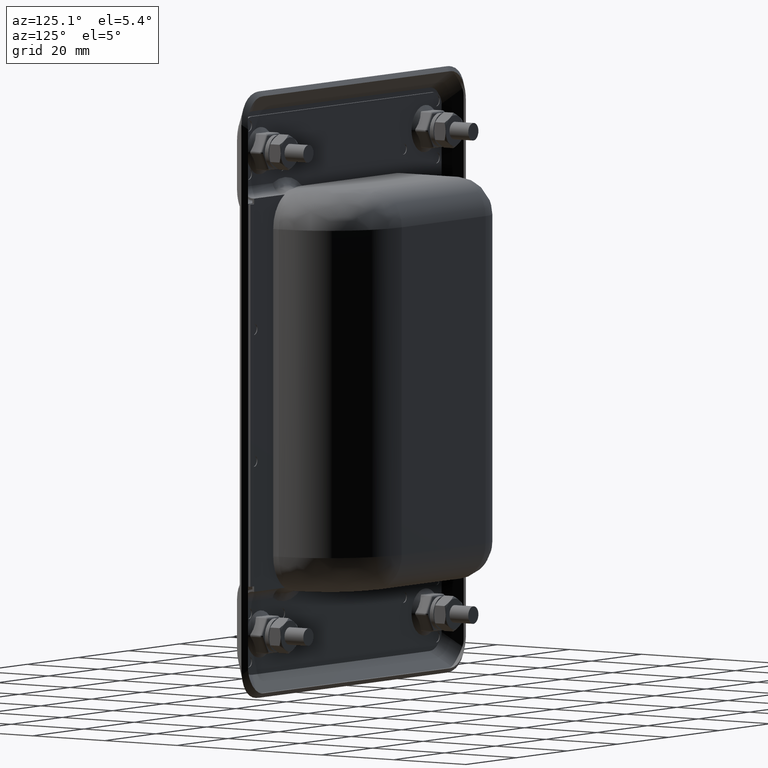
[diagram: clean part render]
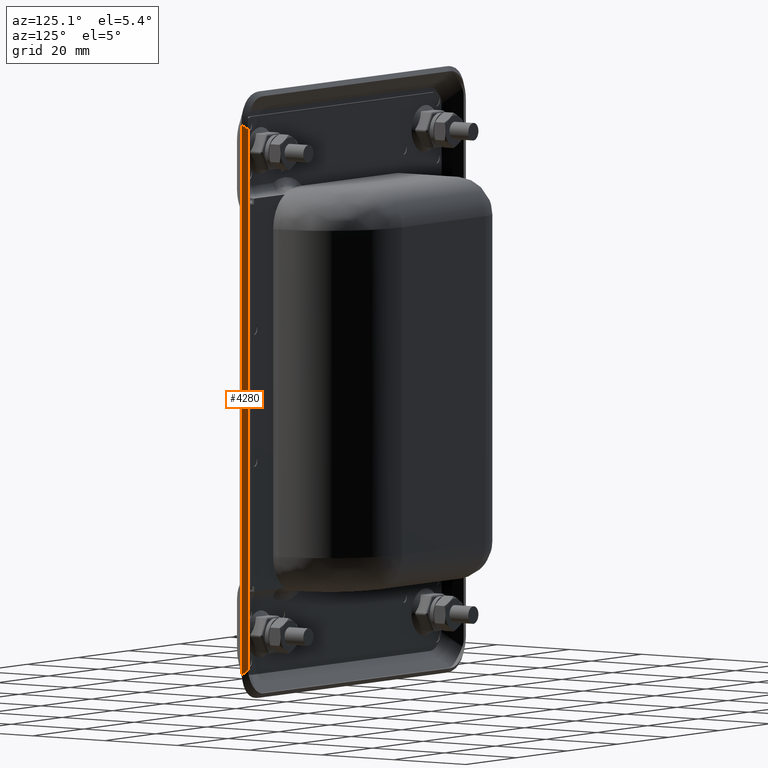
[diagram: same view with one face highlighted and labeled with its STEP entity id]
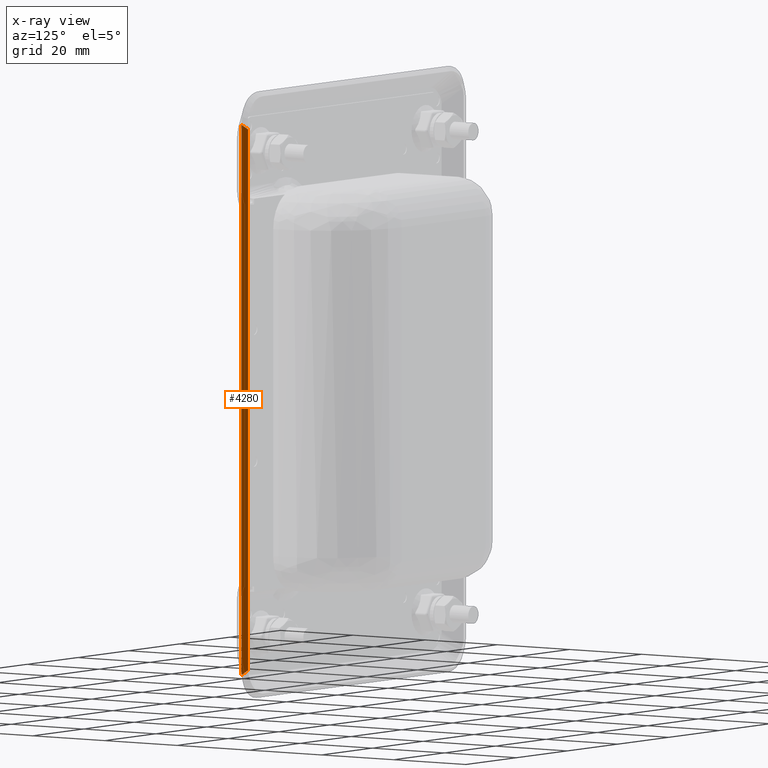
[diagram: x-ray of the same camera — body ghosted, the highlighted face saturated]
A machine part, auxiliary view. The second image highlights one B-rep face of the part: STEP entity #4280.
The next image is the same camera in x-ray: the body ghosted, the highlighted face saturated — about 0% of this face is hidden behind the body in this view.
In plain terms, the highlighted face is a freeform B-spline surface patch.
Its self-contained STEP definition (entity closure, byte-faithful):
#3220=CARTESIAN_POINT('',(42.930704785089347,5.509295215085380,-62.273850535610393));
#3221=VERTEX_POINT('',#3220);
#3261=CARTESIAN_POINT('',(43.955631830843352,4.484368169331470,-63.298777581364412));
#3262=VERTEX_POINT('',#3261);
#3263=CARTESIAN_POINT('',(43.955631830843352,4.484368169331470,-63.298777581364412));
#3264=CARTESIAN_POINT('',(42.930704785089347,5.509295215085380,-62.273850535610393));
#3265=QUASI_UNIFORM_CURVE('',1,(#3263,#3264),.UNSPECIFIED.,.F.,.U.);
#3266=EDGE_CURVE('',#3262,#3221,#3265,.T.);
#3461=CARTESIAN_POINT('',(44.000000000174794,4.440000000000000,-61.928932188322797));
#3462=VERTEX_POINT('',#3461);
#3484=CARTESIAN_POINT('',(44.000000000174794,4.440000000000000,-61.928932188322797));
#3485=CARTESIAN_POINT('',(44.000021687554877,4.439978312619915,-62.386184432750632));
#3486=CARTESIAN_POINT('',(43.985211435540172,4.454788564634796,-62.843444208321039));
#3487=CARTESIAN_POINT('',(43.955631830843352,4.484368169331470,-63.298777581364412));
#3488=B_SPLINE_CURVE_WITH_KNOTS('',3,(#3484,#3485,#3486,#3487),.UNSPECIFIED.,.F.,.U.,(4,4),(3.693499E-010,1.371769386644681),.UNSPECIFIED.);
#3489=EDGE_CURVE('',#3462,#3262,#3488,.T.);
#3853=CARTESIAN_POINT('',(42.940000000174798,5.500000000000000,-61.940000000188199));
#3854=VERTEX_POINT('',#3853);
#3855=CARTESIAN_POINT('',(42.930704785089347,5.509295215085380,-62.273850535610393));
#3856=CARTESIAN_POINT('',(42.940000000174798,5.500000000000000,-61.940000000188199));
#3857=QUASI_UNIFORM_CURVE('',1,(#3855,#3856),.UNSPECIFIED.,.F.,.U.);
#3858=EDGE_CURVE('',#3221,#3854,#3857,.T.);
#3981=CARTESIAN_POINT('',(44.000000000174794,4.440000000000000,61.928932187923600));
#3982=VERTEX_POINT('',#3981);
#4035=CARTESIAN_POINT('',(42.940000000174798,5.500000000000000,60.868932187923903));
#4036=VERTEX_POINT('',#4035);
#4037=CARTESIAN_POINT('',(42.940000000174798,5.500000000000000,60.868932187923903));
#4038=CARTESIAN_POINT('',(44.000000000174794,4.440000000000000,61.928932187923600));
#4039=QUASI_UNIFORM_CURVE('',1,(#4037,#4038),.UNSPECIFIED.,.F.,.U.);
#4040=EDGE_CURVE('',#4036,#3982,#4039,.T.);
#4259=CARTESIAN_POINT('',(44.053411225779733,4.386588774395057,-69.553902617172881));
#4260=CARTESIAN_POINT('',(42.877294266942513,5.562705733232282,-69.553902617172881));
#4261=CARTESIAN_POINT('',(44.053411225779733,4.386588774395057,68.184059462978027));
#4262=CARTESIAN_POINT('',(42.877294266942513,5.562705733232282,68.184059462978027));
#4263=B_SPLINE_SURFACE_WITH_KNOTS('',1,1,((#4259,#4261),(#4260,#4262)),.UNSPECIFIED.,.F.,.F.,.U.,(2,2),(2,2),(0.041708388189226,0.958291060467809),(0.0,137.737962080150910),.UNSPECIFIED.);
#4264=ORIENTED_EDGE('',*,*,#3489,.T.);
#4265=ORIENTED_EDGE('',*,*,#3266,.T.);
#4266=ORIENTED_EDGE('',*,*,#3858,.T.);
#4267=CARTESIAN_POINT('',(42.940000000174798,5.500000000000000,60.868932187923903));
#4268=CARTESIAN_POINT('',(42.940000000174798,5.500000000000000,-61.940000000188199));
#4269=QUASI_UNIFORM_CURVE('',1,(#4267,#4268),.UNSPECIFIED.,.F.,.U.);
#4270=EDGE_CURVE('',#4036,#3854,#4269,.T.);
#4271=ORIENTED_EDGE('',*,*,#4270,.F.);
#4272=ORIENTED_EDGE('',*,*,#4040,.T.);
#4273=CARTESIAN_POINT('',(44.000000000174794,4.440000000000000,61.928932187923600));
#4274=CARTESIAN_POINT('',(44.000000000174794,4.440000000000000,-61.928932188322797));
#4275=QUASI_UNIFORM_CURVE('',1,(#4273,#4274),.UNSPECIFIED.,.F.,.U.);
#4276=EDGE_CURVE('',#3982,#3462,#4275,.T.);
#4277=ORIENTED_EDGE('',*,*,#4276,.T.);
#4278=EDGE_LOOP('',(#4264,#4265,#4266,#4271,#4272,#4277));
#4279=FACE_OUTER_BOUND('',#4278,.T.);
#4280=ADVANCED_FACE('',(#4279),#4263,.T.);